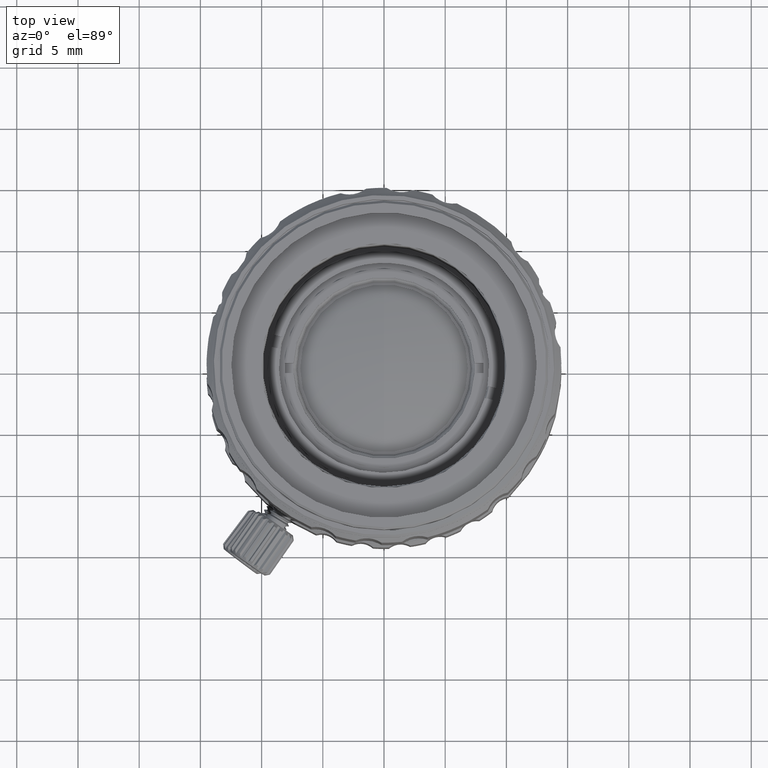
[diagram: clean part render]
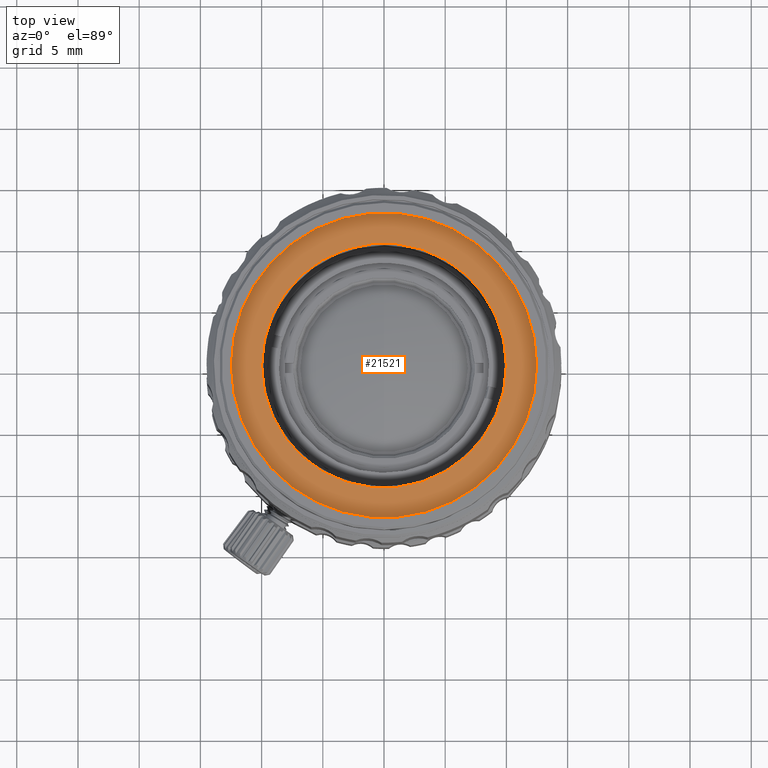
[diagram: same view with one face highlighted and labeled with its STEP entity id]
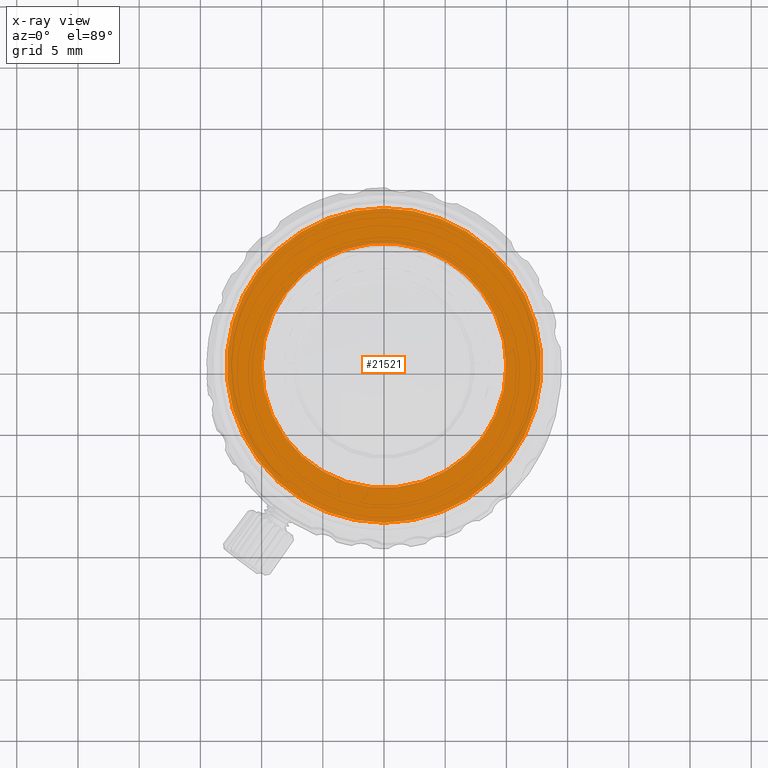
[diagram: x-ray of the same camera — body ghosted, the highlighted face saturated]
A machine part, top view. The second image highlights one B-rep face of the part: STEP entity #21521.
The next image is the same camera in x-ray: the body ghosted, the highlighted face saturated — about 0% of this face is hidden behind the body in this view.
In plain terms, the highlighted planar face has unit normal (0, 0, -1).
Its self-contained STEP definition (entity closure, byte-faithful):
#1323 = AXIS2_PLACEMENT_3D ( 'NONE', #61006, #36495, #58041 ) ;
#3333 = ORIENTED_EDGE ( 'NONE', *, *, #35397, .T. ) ;
#5709 = AXIS2_PLACEMENT_3D ( 'NONE', #20736, #5928, #11697 ) ;
#5928 = DIRECTION ( 'NONE',  ( 0.000000000000000000, 0.000000000000000000, -1.000000000000000000 ) ) ;
#11455 = CARTESIAN_POINT ( 'NONE',  ( 7.124091346869105995E-13, 12.84999999999999964, 25.62000004966100164 ) ) ;
#11594 = CIRCLE ( 'NONE', #1323, 12.84999999999999964 ) ;
#11697 = DIRECTION ( 'NONE',  ( 0.000000000000000000, -1.000000000000000000, 0.000000000000000000 ) ) ;
#16481 = CARTESIAN_POINT ( 'NONE',  ( 0.000000000000000000, 0.000000000000000000, 25.62000004966100164 ) ) ;
#16821 = VERTEX_POINT ( 'NONE', #51516 ) ;
#17364 = CIRCLE ( 'NONE', #56451, 12.84999999999999964 ) ;
#19376 = DIRECTION ( 'NONE',  ( 5.544039958653000975E-14, 1.000000000000000000, 0.000000000000000000 ) ) ;
#20736 = CARTESIAN_POINT ( 'NONE',  ( 0.000000000000000000, 0.000000000000000000, 25.62000004966100164 ) ) ;
#21313 = DIRECTION ( 'NONE',  ( -1.000000000000000000, 0.000000000000000000, 0.000000000000000000 ) ) ;
#21521 = ADVANCED_FACE ( 'NONE', ( #56147, #60677 ), #21674, .F. ) ;
#21674 = PLANE ( 'NONE',  #5709 ) ;
#23675 = AXIS2_PLACEMENT_3D ( 'NONE', #16481, #35480, #21313 ) ;
#28741 = EDGE_CURVE ( 'NONE', #60407, #37919, #11594, .T. ) ;
#31910 = CIRCLE ( 'NONE', #23675, 10.00000000000000000 ) ;
#33544 = AXIS2_PLACEMENT_3D ( 'NONE', #63663, #34000, #58487 ) ;
#34000 = DIRECTION ( 'NONE',  ( 0.000000000000000000, 0.000000000000000000, -1.000000000000000000 ) ) ;
#35397 = EDGE_CURVE ( 'NONE', #16821, #41585, #31910, .T. ) ;
#35480 = DIRECTION ( 'NONE',  ( 0.000000000000000000, 0.000000000000000000, -1.000000000000000000 ) ) ;
#36495 = DIRECTION ( 'NONE',  ( 0.000000000000000000, 0.000000000000000000, -1.000000000000000000 ) ) ;
#37919 = VERTEX_POINT ( 'NONE', #49713 ) ;
#38692 = CARTESIAN_POINT ( 'NONE',  ( 0.000000000000000000, 0.000000000000000000, 25.62000004966100164 ) ) ;
#41585 = VERTEX_POINT ( 'NONE', #51563 ) ;
#42022 = EDGE_LOOP ( 'NONE', ( #42295, #53043 ) ) ;
#42295 = ORIENTED_EDGE ( 'NONE', *, *, #28741, .F. ) ;
#43918 = ORIENTED_EDGE ( 'NONE', *, *, #52534, .T. ) ;
#48666 = DIRECTION ( 'NONE',  ( 0.000000000000000000, 0.000000000000000000, -1.000000000000000000 ) ) ;
#49713 = CARTESIAN_POINT ( 'NONE',  ( -7.096046673047416879E-13, -12.84999999999999964, 25.62000004966100164 ) ) ;
#50024 = CIRCLE ( 'NONE', #33544, 10.00000000000000000 ) ;
#50274 = EDGE_LOOP ( 'NONE', ( #3333, #43918 ) ) ;
#51516 = CARTESIAN_POINT ( 'NONE',  ( 10.00000000000000000, 0.000000000000000000, 25.62000004966100164 ) ) ;
#51563 = CARTESIAN_POINT ( 'NONE',  ( -10.00000000000000000, -1.224646799147353256E-15, 25.62000004966100164 ) ) ;
#52534 = EDGE_CURVE ( 'NONE', #41585, #16821, #50024, .T. ) ;
#53043 = ORIENTED_EDGE ( 'NONE', *, *, #63377, .F. ) ;
#56147 = FACE_OUTER_BOUND ( 'NONE', #42022, .T. ) ;
#56451 = AXIS2_PLACEMENT_3D ( 'NONE', #38692, #48666, #19376 ) ;
#58041 = DIRECTION ( 'NONE',  ( 5.544039958653000975E-14, 1.000000000000000000, 0.000000000000000000 ) ) ;
#58487 = DIRECTION ( 'NONE',  ( -1.000000000000000000, 0.000000000000000000, 0.000000000000000000 ) ) ;
#60407 = VERTEX_POINT ( 'NONE', #11455 ) ;
#60677 = FACE_BOUND ( 'NONE', #50274, .T. ) ;
#61006 = CARTESIAN_POINT ( 'NONE',  ( 0.000000000000000000, 0.000000000000000000, 25.62000004966100164 ) ) ;
#63377 = EDGE_CURVE ( 'NONE', #37919, #60407, #17364, .T. ) ;
#63663 = CARTESIAN_POINT ( 'NONE',  ( 0.000000000000000000, 0.000000000000000000, 25.62000004966100164 ) ) ;